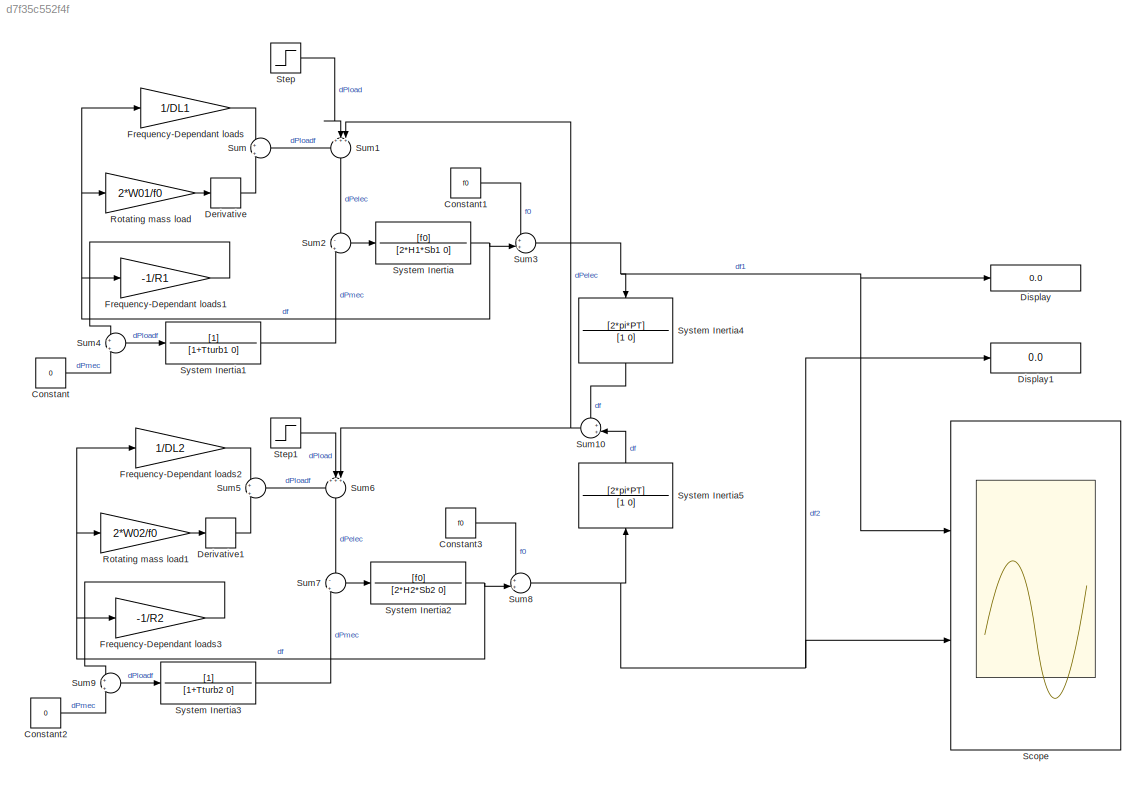
MODEL slx_d7f35c552f4f
KIND model
CONFIG AbsTol = auto
CONFIG EnableMultiTasking = off
CONFIG FixedStep = auto
CONFIG InitFcn = H = 5;\nSb = 10000;\nf0 = 50;\nW0 = 100\nDL = 1/200;\ndPLoad = +1000
CONFIG MaxStep = auto
CONFIG MinStep = auto
CONFIG RelTol = 1e-3
CONFIG SampleTimeConstraint = Unconstrained
CONFIG SolverName = VariableStepAuto
CONFIG StartTime = 0.0
CONFIG StopTime = 60
BLOCK [Constant] Constant
  Value = 0
BLOCK [Constant] Constant1
  Value = f0
BLOCK [Constant] Constant2
  Value = 0
BLOCK [Constant] Constant3
  Value = f0
BLOCK [Derivative] Derivative
BLOCK [Derivative] Derivative1
BLOCK [Display] Display
  Decimation = 1
  Ports = [1]
BLOCK [Display] Display1
  Decimation = 1
  Ports = [1]
BLOCK [Gain] Frequency-Dependant loads
  Gain = 1/DL1
BLOCK [Gain] Frequency-Dependant loads1
  Gain = -1/R1
BLOCK [Gain] Frequency-Dependant loads2
  Gain = 1/DL2
BLOCK [Gain] Frequency-Dependant loads3
  Gain = -1/R2
BLOCK [Gain] Rotating mass load
  Gain = 2*W01/f0
BLOCK [Gain] Rotating mass load1
  Gain = 2*W02/f0
BLOCK [Scope] Scope
  Floating = off
  NumInputPorts = 2
  Ports = [2]
  ScopeSpecificationString = Simulink.scopes.TimeScopeBlockCfg('CurrentConfiguration', extmgr.ConfigurationSet(extmgr.Configuration('Core','General UI',true),extmgr.Configuration('Core','Source UI',true),extmgr.Configuration('Sources','WiredSimulink',true),extmgr.Configuration('Visuals','Time Domain',true,'SerializedDisplays',{struct('MinYLimReal','-52.58992','MaxYLimReal','79.42369','YLabelReal','','MinYLimMag','0.00000','Ma...<+1360ch>
BLOCK [Step] Step
  After = 100
  SampleTime = 0
BLOCK [Step] Step1
  After = 0
  SampleTime = 0
BLOCK [Sum] Sum
  Inputs = +|+
  Ports = [2, 1]
BLOCK [Sum] Sum1
  Inputs = +++|
  NameLocation = left
  Ports = [3, 1]
BLOCK [Sum] Sum10
  Inputs = ++|
  NameLocation = top
  Ports = [2, 1]
BLOCK [Sum] Sum2
  Inputs = -|+
  Ports = [2, 1]
BLOCK [Sum] Sum3
  Inputs = ++|
  Ports = [2, 1]
BLOCK [Sum] Sum4
  Inputs = +|+
  Ports = [2, 1]
BLOCK [Sum] Sum5
  Inputs = +|+
  Ports = [2, 1]
BLOCK [Sum] Sum6
  Inputs = +++|
  NameLocation = left
  Ports = [3, 1]
BLOCK [Sum] Sum7
  Inputs = -|+
  Ports = [2, 1]
BLOCK [Sum] Sum8
  Inputs = ++|
  Ports = [2, 1]
BLOCK [Sum] Sum9
  Inputs = +|+
  Ports = [2, 1]
BLOCK [TransferFcn] System Inertia
  Denominator = [2*H1*Sb1 0]
  Numerator = [f0]
BLOCK [TransferFcn] System Inertia1
  Denominator = [1+Tturb1 0]
BLOCK [TransferFcn] System Inertia2
  Denominator = [2*H2*Sb2 0]
  Numerator = [f0]
BLOCK [TransferFcn] System Inertia3
  Denominator = [1+Tturb2 0]
BLOCK [TransferFcn] System Inertia4
  Denominator = [1 0]
  NameLocation = left
  Numerator = [2*pi*PT]
BLOCK [TransferFcn] System Inertia5
  Denominator = [1 0]
  NameLocation = right
  Numerator = [2*pi*PT]
LINE Constant1:1 -> Sum3:1
LINE Constant2:1 -> Sum9:2
LINE Constant3:1 -> Sum8:1
LINE Constant:1 -> Sum4:2
LINE Derivative1:1 -> Sum5:2
LINE Derivative:1 -> Sum:2
LINE Frequency-Dependant loads1:1 -> Sum4:1
LINE Frequency-Dependant loads2:1 -> Sum5:1
LINE Frequency-Dependant loads3:1 -> Sum9:1
LINE Frequency-Dependant loads:1 -> Sum:1
LINE Rotating mass load1:1 -> Derivative1:1
LINE Rotating mass load:1 -> Derivative:1
LINE Step1:1 -> Sum6:2
LINE Step:1 -> Sum1:2
NET Sum10:1 -> Sum1:3, Sum6:3
LINE Sum1:1 -> Sum2:1
LINE Sum2:1 -> System Inertia:1
NET Sum3:1 -> Display:1, Scope:1, System Inertia4:1
LINE Sum4:1 -> System Inertia1:1
LINE Sum5:1 -> Sum6:1
LINE Sum6:1 -> Sum7:1
LINE Sum7:1 -> System Inertia2:1
NET Sum8:1 -> Display1:1, Scope:2, System Inertia5:1
LINE Sum9:1 -> System Inertia3:1
LINE Sum:1 -> Sum1:1
LINE System Inertia1:1 -> Sum2:2
NET System Inertia2:1 -> Frequency-Dependant loads2:1, Frequency-Dependant loads3:1, Rotating mass load1:1, Sum8:2
LINE System Inertia3:1 -> Sum7:2
LINE System Inertia4:1 -> Sum10:1
LINE System Inertia5:1 -> Sum10:2
NET System Inertia:1 -> Frequency-Dependant loads1:1, Frequency-Dependant loads:1, Rotating mass load:1, Sum3:2
note: NET lines group one-source signal fan-out (src -> all destinations, sorted); 1:1 wires keep LINE
